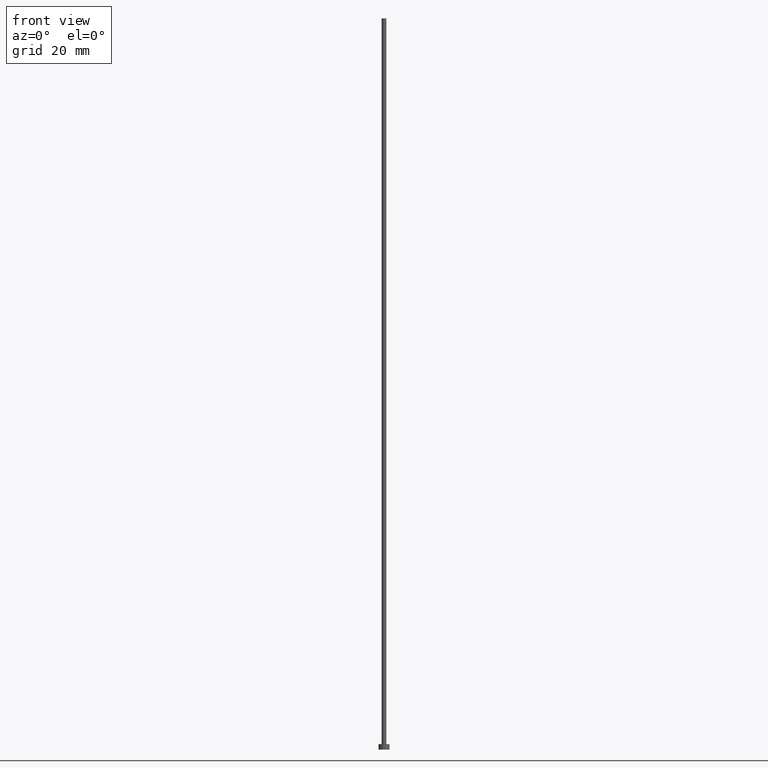
[diagram: clean part render]
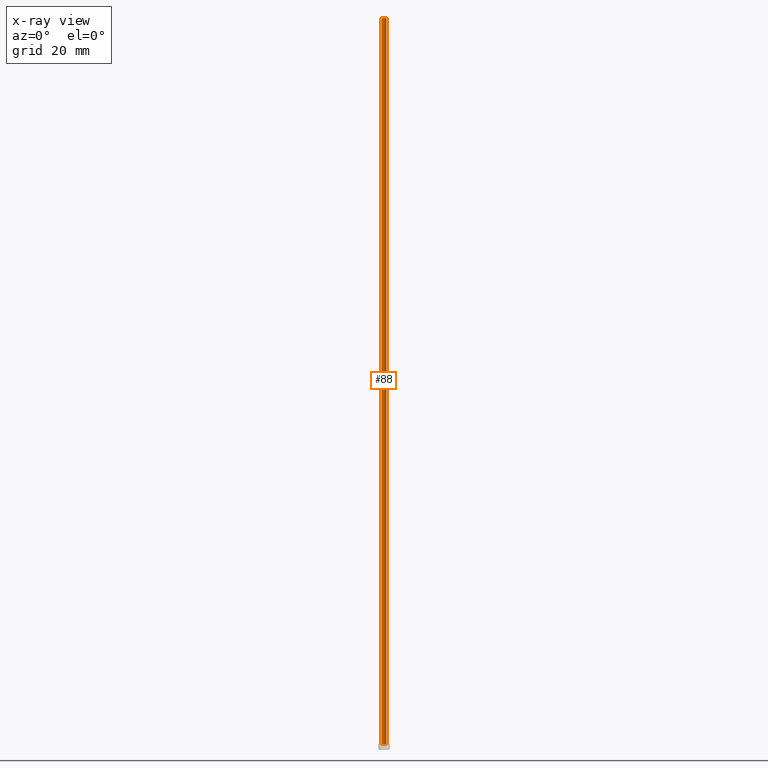
[diagram: x-ray — body ghosted, one internal face saturated and labeled with its STEP entity id]
A machine part, front view, then the same camera in x-ray: the body is ghosted and one INTERNAL B-rep face — a face not visible from any outside direction — is saturated and labeled: STEP entity #88.
In plain terms, the highlighted cylindrical surface (edge-blend (fillet) strip) has radius 0.65 mm, axis along (-0, -0, -1).
Its self-contained STEP definition (entity closure, byte-faithful):
#1 = CARTESIAN_POINT ( 'NONE',  ( 0.000000000000000000, 0.000000000000000000, 200.0000000000000000 ) ) ;
#4 = CARTESIAN_POINT ( 'NONE',  ( 0.6500000000000000222, 7.960204194457795477E-17, 200.0000000000000000 ) ) ;
#5 = VERTEX_POINT ( 'NONE', #142 ) ;
#26 = CARTESIAN_POINT ( 'NONE',  ( -0.6500000000000000222, 0.000000000000000000, 1.500000000000000000 ) ) ;
#27 = VERTEX_POINT ( 'NONE', #161 ) ;
#35 = AXIS2_PLACEMENT_3D ( 'NONE', #1, #230, #229 ) ;
#40 = EDGE_CURVE ( 'NONE', #222, #5, #203, .T. ) ;
#48 = EDGE_LOOP ( 'NONE', ( #129, #66, #70, #246 ) ) ;
#53 = EDGE_CURVE ( 'NONE', #222, #27, #213, .T. ) ;
#64 = LINE ( 'NONE', #65, #93 ) ;
#65 = CARTESIAN_POINT ( 'NONE',  ( -0.6500000000000000222, 0.000000000000000000, 200.0000000000000000 ) ) ;
#66 = ORIENTED_EDGE ( 'NONE', *, *, #40, .T. ) ;
#70 = ORIENTED_EDGE ( 'NONE', *, *, #218, .T. ) ;
#75 = FACE_OUTER_BOUND ( 'NONE', #48, .T. ) ;
#88 = ADVANCED_FACE ( 'NONE', ( #75 ), #149, .T. ) ;
#93 = VECTOR ( 'NONE', #120, 1000.000000000000000 ) ;
#104 = CARTESIAN_POINT ( 'NONE',  ( 0.000000000000000000, 0.000000000000000000, 1.500000000000000000 ) ) ;
#120 = DIRECTION ( 'NONE',  ( -0.000000000000000000, -0.000000000000000000, -1.000000000000000000 ) ) ;
#129 = ORIENTED_EDGE ( 'NONE', *, *, #53, .F. ) ;
#133 = DIRECTION ( 'NONE',  ( 0.000000000000000000, 0.000000000000000000, 1.000000000000000000 ) ) ;
#134 = VECTOR ( 'NONE', #174, 1000.000000000000000 ) ;
#142 = CARTESIAN_POINT ( 'NONE',  ( 0.6500000000000000222, 7.960204194457795477E-17, 1.500000000000000000 ) ) ;
#144 = DIRECTION ( 'NONE',  ( 0.000000000000000000, 0.000000000000000000, 1.000000000000000000 ) ) ;
#149 = CYLINDRICAL_SURFACE ( 'NONE', #35, 0.6500000000000000222 ) ;
#161 = CARTESIAN_POINT ( 'NONE',  ( -0.6500000000000000222, 0.000000000000000000, 200.0000000000000000 ) ) ;
#162 = CARTESIAN_POINT ( 'NONE',  ( 0.6500000000000000222, 7.960204194457795477E-17, 200.0000000000000000 ) ) ;
#166 = CIRCLE ( 'NONE', #198, 0.6500000000000000222 ) ;
#174 = DIRECTION ( 'NONE',  ( -0.000000000000000000, -0.000000000000000000, -1.000000000000000000 ) ) ;
#190 = CARTESIAN_POINT ( 'NONE',  ( 0.000000000000000000, 0.000000000000000000, 200.0000000000000000 ) ) ;
#193 = DIRECTION ( 'NONE',  ( 1.000000000000000000, 0.000000000000000000, 0.000000000000000000 ) ) ;
#198 = AXIS2_PLACEMENT_3D ( 'NONE', #104, #144, #244 ) ;
#203 = LINE ( 'NONE', #162, #134 ) ;
#207 = AXIS2_PLACEMENT_3D ( 'NONE', #190, #133, #193 ) ;
#213 = CIRCLE ( 'NONE', #207, 0.6500000000000000222 ) ;
#218 = EDGE_CURVE ( 'NONE', #5, #225, #166, .T. ) ;
#222 = VERTEX_POINT ( 'NONE', #4 ) ;
#225 = VERTEX_POINT ( 'NONE', #26 ) ;
#227 = EDGE_CURVE ( 'NONE', #27, #225, #64, .T. ) ;
#229 = DIRECTION ( 'NONE',  ( -1.000000000000000000, 0.000000000000000000, 0.000000000000000000 ) ) ;
#230 = DIRECTION ( 'NONE',  ( -0.000000000000000000, -0.000000000000000000, -1.000000000000000000 ) ) ;
#244 = DIRECTION ( 'NONE',  ( 1.000000000000000000, 0.000000000000000000, 0.000000000000000000 ) ) ;
#246 = ORIENTED_EDGE ( 'NONE', *, *, #227, .F. ) ;